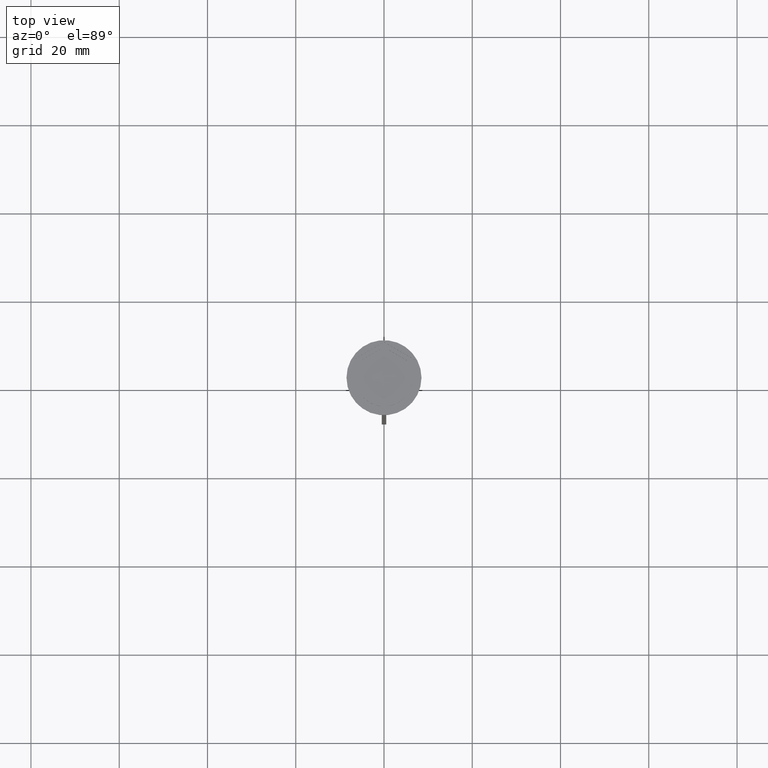
[diagram: clean part render]
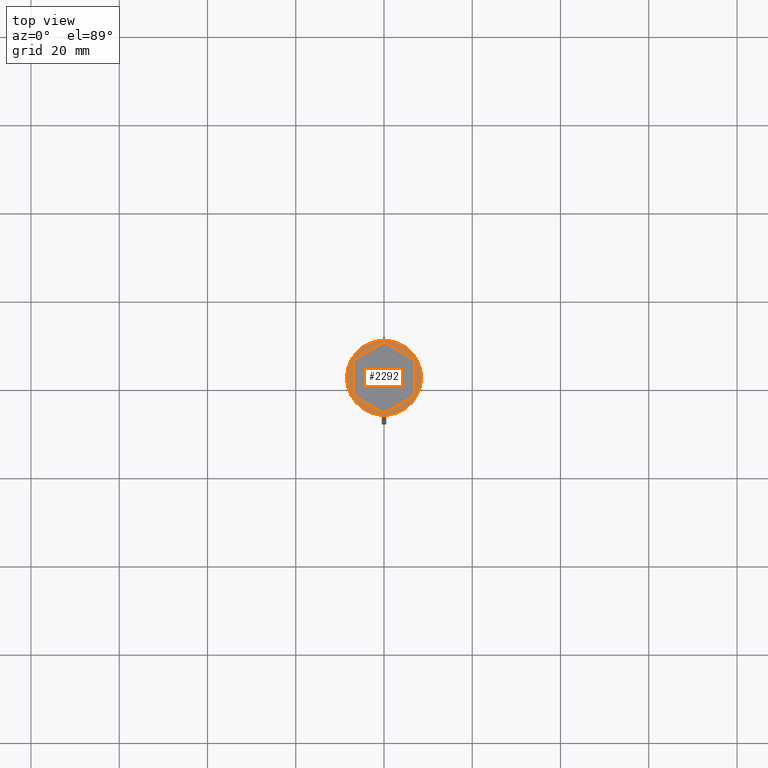
[diagram: same view with one face highlighted and labeled with its STEP entity id]
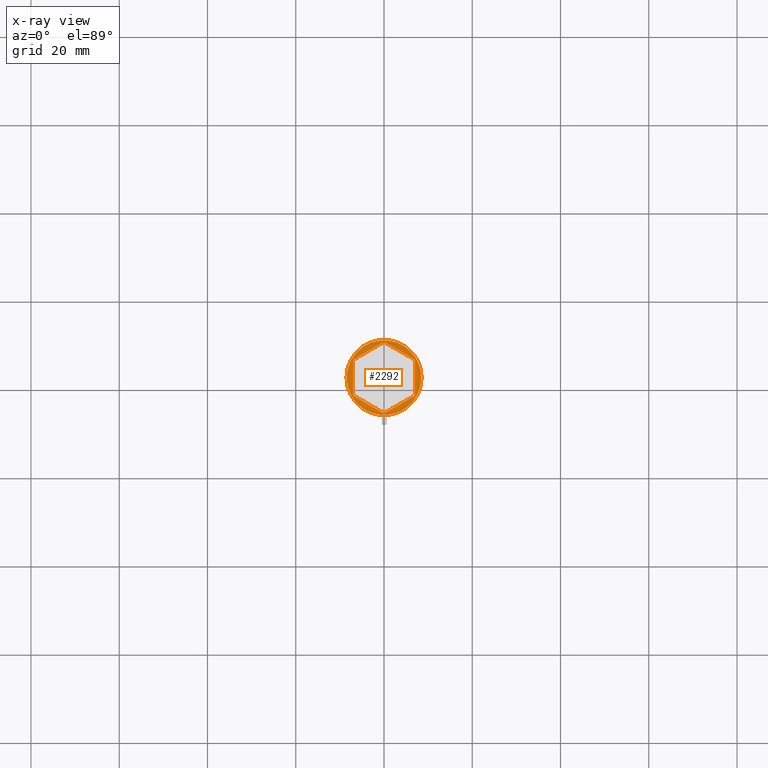
[diagram: x-ray of the same camera — body ghosted, the highlighted face saturated]
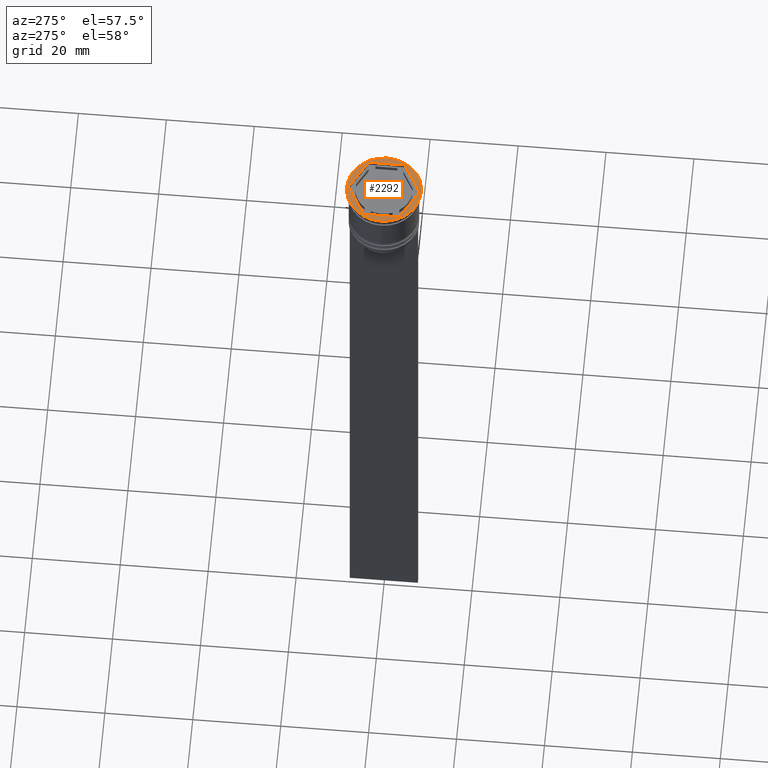
[diagram: same view with one face highlighted and labeled with its STEP entity id]
A machine part, top view. The second image highlights one B-rep face of the part: STEP entity #2292.
The next image is the same camera in x-ray: the body ghosted, the highlighted face saturated — about 0% of this face is hidden behind the body in this view.
A second angle (auxiliary view) of the same face is appended — the face is thin or edge-on in the first view.
In plain terms, the highlighted planar face has unit normal (0, -0, 1).
Its self-contained STEP definition (entity closure, byte-faithful):
#13 = CARTESIAN_POINT ( 'NONE',  ( -7.000000000000000888, -4.041451884327381450, 0.000000000000000000 ) ) ;
#47 = VECTOR ( 'NONE', #1577, 1000.000000000000114 ) ;
#77 = EDGE_CURVE ( 'NONE', #652, #1753, #1967, .T. ) ;
#146 = CARTESIAN_POINT ( 'NONE',  ( 7.000000000000000888, 4.041451884327382338, 0.000000000000000000 ) ) ;
#167 = AXIS2_PLACEMENT_3D ( 'NONE', #1918, #626, #1011 ) ;
#227 = ORIENTED_EDGE ( 'NONE', *, *, #1748, .F. ) ;
#306 = CARTESIAN_POINT ( 'NONE',  ( 7.000000000000000000, -4.041451884327381450, 0.000000000000000000 ) ) ;
#330 = CARTESIAN_POINT ( 'NONE',  ( -7.000000000000000888, -4.041451884327381450, 0.000000000000000000 ) ) ;
#331 = PLANE ( 'NONE',  #1917 ) ;
#377 = EDGE_CURVE ( 'NONE', #1753, #1639, #1650, .T. ) ;
#399 = DIRECTION ( 'NONE',  ( 0.000000000000000000, -0.000000000000000000, 1.000000000000000000 ) ) ;
#401 = AXIS2_PLACEMENT_3D ( 'NONE', #836, #1802, #882 ) ;
#460 = CARTESIAN_POINT ( 'NONE',  ( -7.000000000000000888, 4.041451884327381450, 0.000000000000000000 ) ) ;
#515 = LINE ( 'NONE', #460, #562 ) ;
#525 = DIRECTION ( 'NONE',  ( 0.8660254037844387076, -0.4999999999999997224, 0.000000000000000000 ) ) ;
#538 = DIRECTION ( 'NONE',  ( -0.8660254037844387076, 0.4999999999999998890, 0.000000000000000000 ) ) ;
#542 = ORIENTED_EDGE ( 'NONE', *, *, #885, .F. ) ;
#562 = VECTOR ( 'NONE', #1212, 1000.000000000000000 ) ;
#614 = EDGE_CURVE ( 'NONE', #1639, #2060, #1933, .T. ) ;
#626 = DIRECTION ( 'NONE',  ( -0.000000000000000000, -0.000000000000000000, 1.000000000000000000 ) ) ;
#652 = VERTEX_POINT ( 'NONE', #2269 ) ;
#750 = VECTOR ( 'NONE', #1044, 1000.000000000000000 ) ;
#836 = CARTESIAN_POINT ( 'NONE',  ( 0.000000000000000000, 0.000000000000000000, 0.000000000000000000 ) ) ;
#882 = DIRECTION ( 'NONE',  ( 1.000000000000000000, 0.000000000000000000, 0.000000000000000000 ) ) ;
#885 = EDGE_CURVE ( 'NONE', #1062, #652, #2212, .T. ) ;
#941 = EDGE_CURVE ( 'NONE', #1973, #1062, #1274, .T. ) ;
#1011 = DIRECTION ( 'NONE',  ( 1.000000000000000000, 0.000000000000000000, 0.000000000000000000 ) ) ;
#1044 = DIRECTION ( 'NONE',  ( 1.073081856240827703E-16, 1.000000000000000000, 0.000000000000000000 ) ) ;
#1062 = VERTEX_POINT ( 'NONE', #2259 ) ;
#1064 = DIRECTION ( 'NONE',  ( 0.8660254037844384856, 0.5000000000000001110, 0.000000000000000000 ) ) ;
#1078 = DIRECTION ( 'NONE',  ( 1.000000000000000000, 0.000000000000000000, 0.000000000000000000 ) ) ;
#1103 = CIRCLE ( 'NONE', #401, 8.500000000000000000 ) ;
#1158 = EDGE_CURVE ( 'NONE', #2018, #2214, #1807, .T. ) ;
#1212 = DIRECTION ( 'NONE',  ( 0.000000000000000000, -1.000000000000000000, 0.000000000000000000 ) ) ;
#1274 = LINE ( 'NONE', #330, #1844 ) ;
#1387 = CARTESIAN_POINT ( 'NONE',  ( -7.000000000000000888, 4.041451884327381450, 0.000000000000000000 ) ) ;
#1469 = CARTESIAN_POINT ( 'NONE',  ( 2.174016704710901386E-15, -8.082903768654762899, 0.000000000000000000 ) ) ;
#1562 = ORIENTED_EDGE ( 'NONE', *, *, #77, .F. ) ;
#1577 = DIRECTION ( 'NONE',  ( -0.8660254037844385966, -0.4999999999999999445, 0.000000000000000000 ) ) ;
#1637 = FACE_OUTER_BOUND ( 'NONE', #2309, .T. ) ;
#1639 = VERTEX_POINT ( 'NONE', #1717 ) ;
#1645 = ORIENTED_EDGE ( 'NONE', *, *, #1158, .T. ) ;
#1650 = LINE ( 'NONE', #2222, #2258 ) ;
#1688 = VECTOR ( 'NONE', #1064, 1000.000000000000227 ) ;
#1716 = ORIENTED_EDGE ( 'NONE', *, *, #614, .F. ) ;
#1717 = CARTESIAN_POINT ( 'NONE',  ( 0.000000000000000000, 8.082903768654762899, 0.000000000000000000 ) ) ;
#1748 = EDGE_CURVE ( 'NONE', #2060, #1973, #515, .T. ) ;
#1753 = VERTEX_POINT ( 'NONE', #146 ) ;
#1754 = CARTESIAN_POINT ( 'NONE',  ( 0.000000000000000000, 8.082903768654762899, 0.000000000000000000 ) ) ;
#1784 = ORIENTED_EDGE ( 'NONE', *, *, #941, .F. ) ;
#1802 = DIRECTION ( 'NONE',  ( -0.000000000000000000, -0.000000000000000000, 1.000000000000000000 ) ) ;
#1807 = CIRCLE ( 'NONE', #167, 8.500000000000000000 ) ;
#1844 = VECTOR ( 'NONE', #525, 1000.000000000000114 ) ;
#1845 = EDGE_CURVE ( 'NONE', #2214, #2018, #1103, .T. ) ;
#1865 = ORIENTED_EDGE ( 'NONE', *, *, #377, .F. ) ;
#1917 = AXIS2_PLACEMENT_3D ( 'NONE', #2404, #399, #1078 ) ;
#1918 = CARTESIAN_POINT ( 'NONE',  ( 0.000000000000000000, 0.000000000000000000, 0.000000000000000000 ) ) ;
#1925 = CARTESIAN_POINT ( 'NONE',  ( -8.500000000000000000, 1.040949779275250140E-15, 0.000000000000000000 ) ) ;
#1933 = LINE ( 'NONE', #1754, #47 ) ;
#1934 = CARTESIAN_POINT ( 'NONE',  ( 8.500000000000000000, 0.000000000000000000, 0.000000000000000000 ) ) ;
#1967 = LINE ( 'NONE', #306, #750 ) ;
#1973 = VERTEX_POINT ( 'NONE', #13 ) ;
#2018 = VERTEX_POINT ( 'NONE', #1925 ) ;
#2060 = VERTEX_POINT ( 'NONE', #1387 ) ;
#2088 = FACE_BOUND ( 'NONE', #2135, .T. ) ;
#2135 = EDGE_LOOP ( 'NONE', ( #1865, #1562, #542, #1784, #227, #1716 ) ) ;
#2167 = ORIENTED_EDGE ( 'NONE', *, *, #1845, .T. ) ;
#2212 = LINE ( 'NONE', #1469, #1688 ) ;
#2214 = VERTEX_POINT ( 'NONE', #1934 ) ;
#2222 = CARTESIAN_POINT ( 'NONE',  ( 7.000000000000000888, 4.041451884327382338, 0.000000000000000000 ) ) ;
#2258 = VECTOR ( 'NONE', #538, 1000.000000000000114 ) ;
#2259 = CARTESIAN_POINT ( 'NONE',  ( 2.174016704710901386E-15, -8.082903768654762899, 0.000000000000000000 ) ) ;
#2269 = CARTESIAN_POINT ( 'NONE',  ( 7.000000000000000000, -4.041451884327381450, 0.000000000000000000 ) ) ;
#2292 = ADVANCED_FACE ( 'NONE', ( #2088, #1637 ), #331, .T. ) ;
#2309 = EDGE_LOOP ( 'NONE', ( #2167, #1645 ) ) ;
#2404 = CARTESIAN_POINT ( 'NONE',  ( 0.000000000000000000, 0.000000000000000000, 0.000000000000000000 ) ) ;